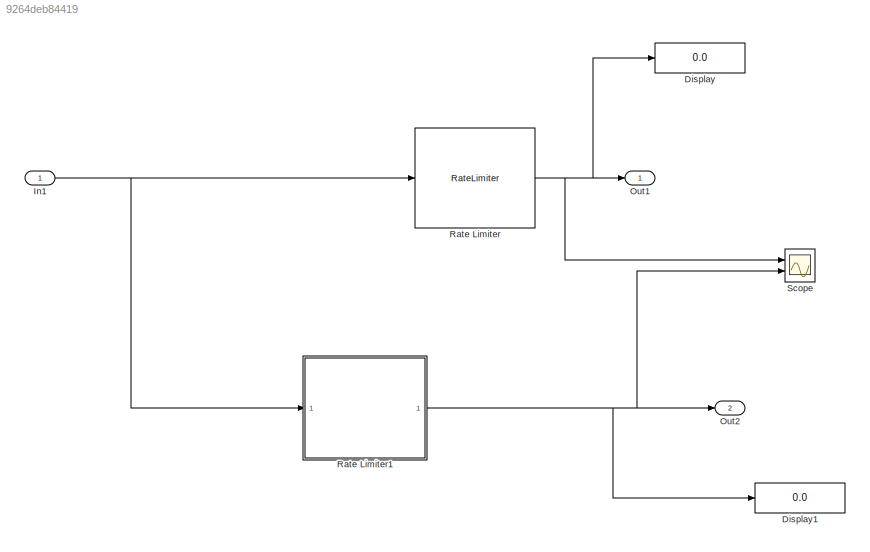
MODEL slx_9264deb84419
KIND model
CONFIG AbsTol = auto
CONFIG EnableMultiTasking = on
CONFIG FixedStep = 0.200000
CONFIG MaxStep = auto
CONFIG MinStep = auto
CONFIG RelTol = 1e-3
CONFIG SampleTimeConstraint = Unconstrained
CONFIG Solver = FixedStepDiscrete
CONFIG SolverName = FixedStepDiscrete
CONFIG StartTime = 0.0
CONFIG StopTime = 10.0
WORKSPACE source: MAT-file member
WORKSPACE A = [2 5 4 4]
BLOCK [Display] Display
  Decimation = 1
  Ports = [1]
BLOCK [Display] Display1
  Decimation = 1
  Ports = [1]
BLOCK [Inport] In1
  IconDisplay = Port number
BLOCK [Outport] Out1
  IconDisplay = Port number
BLOCK [Outport] Out2
  IconDisplay = Port number
  Port = 2
BLOCK [RateLimiter] Rate Limiter
  FallingSlewLimit = -.3
  RisingSlewLimit = .6
  SampleTimeMode = inherited
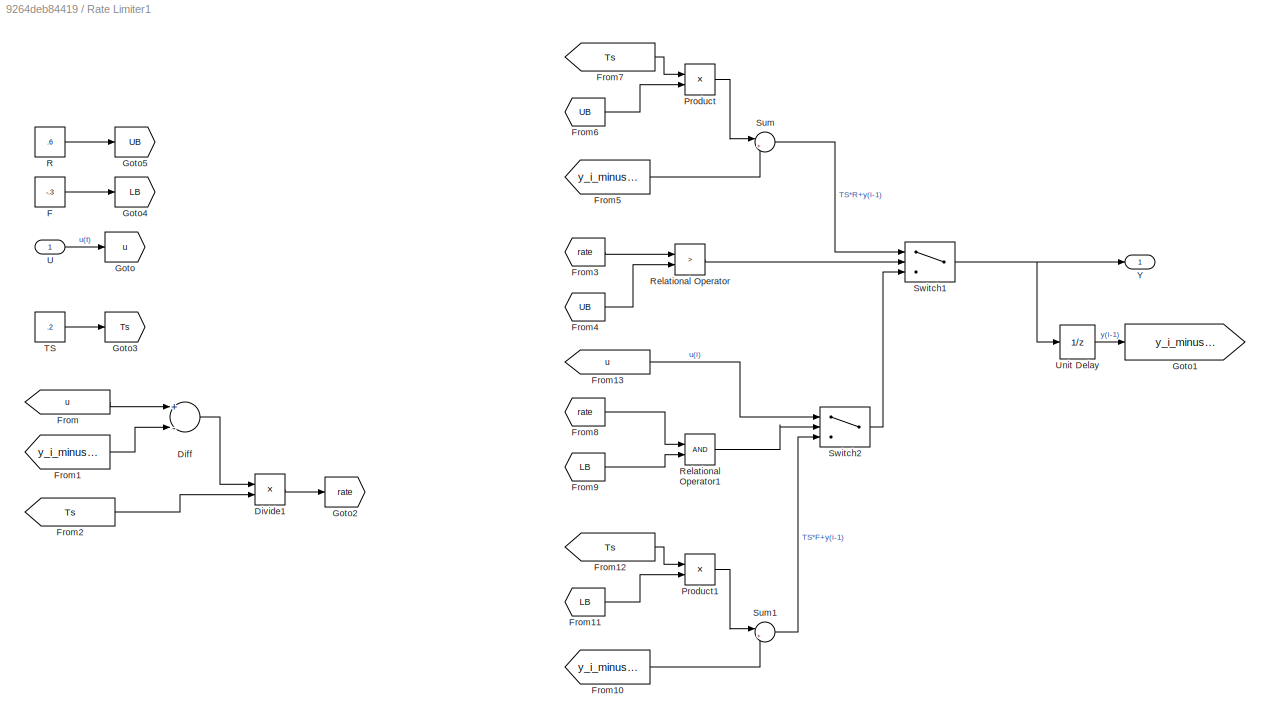
BLOCK [SubSystem] Rate Limiter1
  MinAlgLoopOccurrences = on
  Ports = [1, 1]
  RequestExecContextInheritance = off
  TreatAsAtomicUnit = on
  Variant = off
BLOCK [Sum] Rate Limiter1/Diff
  Description = Add in CPU
  InputSameDT = off
  Inputs = +-
  OutDataTypeStr = Inherit: Inherit via back propagation
  Ports = [2, 1]
  SaturateOnIntegerOverflow = off
BLOCK [Product] Rate Limiter1/Divide1
  InputSameDT = off
  Inputs = */
  OutDataTypeStr = Inherit: Inherit via internal rule
  Ports = [2, 1]
  RndMeth = Floor
  SaturateOnIntegerOverflow = off
BLOCK [Constant] Rate Limiter1/F
  Value = -.3
BLOCK [From] Rate Limiter1/From
  GotoTag = u
BLOCK [From] Rate Limiter1/From1
  GotoTag = y_i_minus_1
BLOCK [From] Rate Limiter1/From10
  GotoTag = y_i_minus_1
BLOCK [From] Rate Limiter1/From11
  GotoTag = LB
BLOCK [From] Rate Limiter1/From12
  GotoTag = Ts
BLOCK [From] Rate Limiter1/From13
  GotoTag = u
BLOCK [From] Rate Limiter1/From2
  GotoTag = Ts
BLOCK [From] Rate Limiter1/From3
  GotoTag = rate
BLOCK [From] Rate Limiter1/From4
  GotoTag = UB
BLOCK [From] Rate Limiter1/From5
  GotoTag = y_i_minus_1
BLOCK [From] Rate Limiter1/From6
  GotoTag = UB
BLOCK [From] Rate Limiter1/From7
  GotoTag = Ts
BLOCK [From] Rate Limiter1/From8
  GotoTag = rate
BLOCK [From] Rate Limiter1/From9
  GotoTag = LB
BLOCK [Goto] Rate Limiter1/Goto
  GotoTag = u
BLOCK [Goto] Rate Limiter1/Goto1
  GotoTag = y_i_minus_1
BLOCK [Goto] Rate Limiter1/Goto2
  GotoTag = rate
BLOCK [Goto] Rate Limiter1/Goto3
  GotoTag = Ts
BLOCK [Goto] Rate Limiter1/Goto4
  GotoTag = LB
BLOCK [Goto] Rate Limiter1/Goto5
  GotoTag = UB
BLOCK [Product] Rate Limiter1/Product
  InputSameDT = off
  OutDataTypeStr = Inherit: Inherit via internal rule
  Ports = [2, 1]
  RndMeth = Floor
  SaturateOnIntegerOverflow = off
BLOCK [Product] Rate Limiter1/Product1
  InputSameDT = off
  OutDataTypeStr = Inherit: Inherit via internal rule
  Ports = [2, 1]
  RndMeth = Floor
  SaturateOnIntegerOverflow = off
BLOCK [Constant] Rate Limiter1/R
  Value = .6
BLOCK [RelationalOperator] Rate Limiter1/Relational Operator
  InputSameDT = off
  Operator = >
  OutDataTypeStr = boolean
  Ports = [2, 1]
BLOCK [RelationalOperator] Rate Limiter1/Relational Operator1
  InputSameDT = off
  OutDataTypeStr = boolean
  Ports = [2, 1]
BLOCK [Sum] Rate Limiter1/Sum
  IconShape = round
  InputSameDT = off
  Inputs = |++
  OutDataTypeStr = Inherit: Inherit via internal rule
  Ports = [2, 1]
  SaturateOnIntegerOverflow = off
BLOCK [Sum] Rate Limiter1/Sum1
  IconShape = round
  InputSameDT = off
  Inputs = |++
  OutDataTypeStr = Inherit: Inherit via internal rule
  Ports = [2, 1]
  SaturateOnIntegerOverflow = off
BLOCK [Switch] Rate Limiter1/Switch1
  Criteria = u2 ~= 0
  InputSameDT = off
  SaturateOnIntegerOverflow = off
BLOCK [Switch] Rate Limiter1/Switch2
  Criteria = u2 ~= 0
  InputSameDT = off
  SaturateOnIntegerOverflow = off
BLOCK [Constant] Rate Limiter1/TS
  Value = .2
BLOCK [Inport] Rate Limiter1/U 
  IconDisplay = Port number
  OutDataTypeStr = double
BLOCK [UnitDelay] Rate Limiter1/Unit Delay
  InputProcessing = Elements as channels (sample based)
  SampleTime = -1
BLOCK [Outport] Rate Limiter1/Y
  IconDisplay = Port number
BLOCK [Scope] Scope
  NumInputPorts = 2
  Ports = [2]
  ScopeSpecificationString = C++SS(StrPVP('Open','off'),StrPVP('TimeRange','auto'),StrPVP('TickLabels','OneTimeTick'),StrPVP('ShowLegends','off'),StrPVP('LimitDataPoints','off'),StrPVP('MaxDataPoints','5000'),StrPVP('SaveToWorkspace','off'),StrPVP('SaveName','ScopeData'),StrPVP('YMin','-0.43607~-0.43607'),StrPVP('YMax','1.13051~1.13051'),StrPVP('BlockParamSampleInput','off'),StrPVP('BlockParamSampleTime','-1'),StrPVP('ZoomMod...<+626ch>
NET In1:1 -> Rate Limiter1:1, Rate Limiter:1
LINE Rate Limiter1/Diff:1 -> Rate Limiter1/Divide1:1
LINE Rate Limiter1/Divide1:1 -> Rate Limiter1/Goto2:1
LINE Rate Limiter1/F:1 -> Rate Limiter1/Goto4:1
LINE Rate Limiter1/From10:1 -> Rate Limiter1/Sum1:2
LINE Rate Limiter1/From11:1 -> Rate Limiter1/Product1:2
LINE Rate Limiter1/From12:1 -> Rate Limiter1/Product1:1
LINE Rate Limiter1/From13:1 -> Rate Limiter1/Switch2:1
LINE Rate Limiter1/From1:1 -> Rate Limiter1/Diff:2
LINE Rate Limiter1/From2:1 -> Rate Limiter1/Divide1:2
LINE Rate Limiter1/From3:1 -> Rate Limiter1/Relational Operator:1
LINE Rate Limiter1/From4:1 -> Rate Limiter1/Relational Operator:2
LINE Rate Limiter1/From5:1 -> Rate Limiter1/Sum:2
LINE Rate Limiter1/From6:1 -> Rate Limiter1/Product:2
LINE Rate Limiter1/From7:1 -> Rate Limiter1/Product:1
LINE Rate Limiter1/From8:1 -> Rate Limiter1/Relational Operator1:1
LINE Rate Limiter1/From9:1 -> Rate Limiter1/Relational Operator1:2
LINE Rate Limiter1/From:1 -> Rate Limiter1/Diff:1
LINE Rate Limiter1/Product1:1 -> Rate Limiter1/Sum1:1
LINE Rate Limiter1/Product:1 -> Rate Limiter1/Sum:1
LINE Rate Limiter1/R:1 -> Rate Limiter1/Goto5:1
LINE Rate Limiter1/Relational Operator1:1 -> Rate Limiter1/Switch2:2
LINE Rate Limiter1/Relational Operator:1 -> Rate Limiter1/Switch1:2
LINE Rate Limiter1/Sum1:1 -> Rate Limiter1/Switch2:3
LINE Rate Limiter1/Sum:1 -> Rate Limiter1/Switch1:1
NET Rate Limiter1/Switch1:1 -> Rate Limiter1/Unit Delay:1, Rate Limiter1/Y:1
LINE Rate Limiter1/Switch2:1 -> Rate Limiter1/Switch1:3
LINE Rate Limiter1/TS:1 -> Rate Limiter1/Goto3:1
LINE Rate Limiter1/U :1 -> Rate Limiter1/Goto:1
LINE Rate Limiter1/Unit Delay:1 -> Rate Limiter1/Goto1:1
NET Rate Limiter1:1 -> Display1:1, Out2:1, Scope:2
NET Rate Limiter:1 -> Display:1, Out1:1, Scope:1
note: NET lines group one-source signal fan-out (src -> all destinations, sorted); 1:1 wires keep LINE
